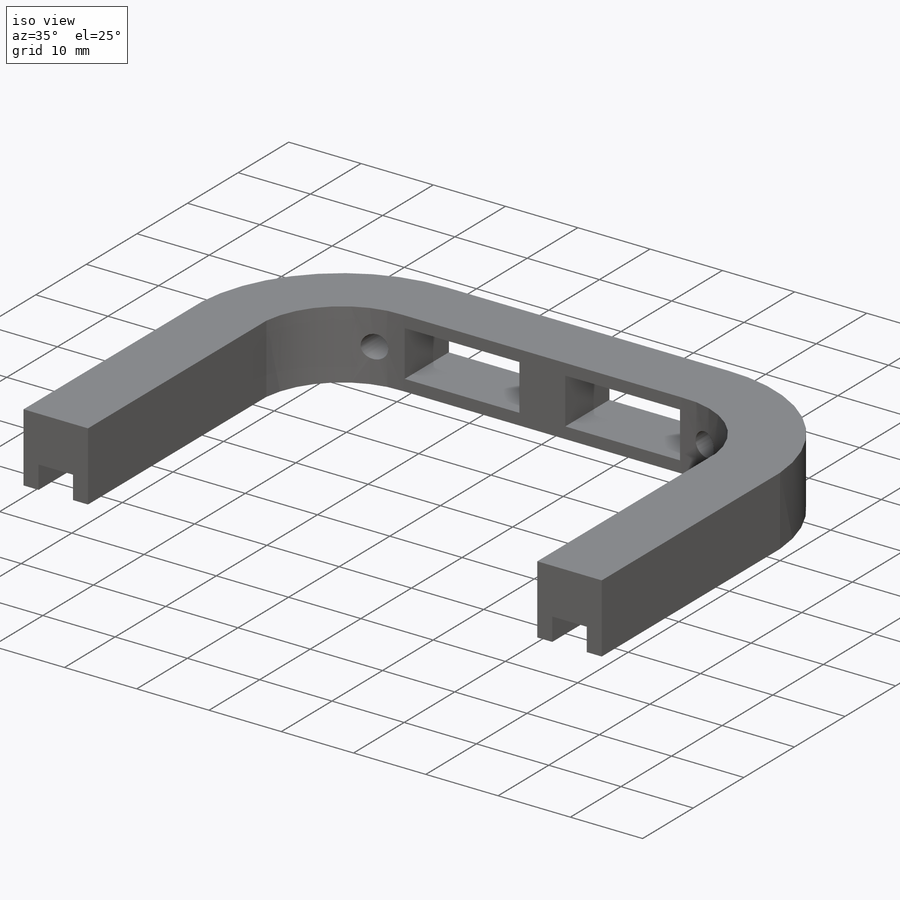
[diagram: iso view]
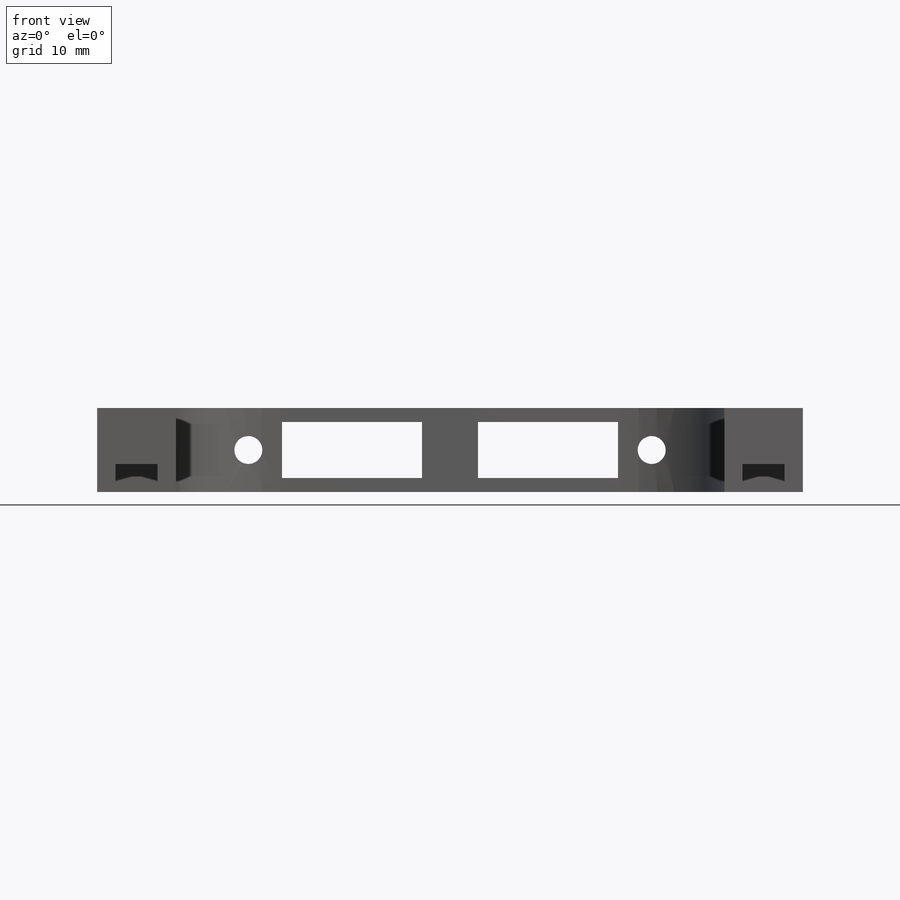
[diagram: front view]
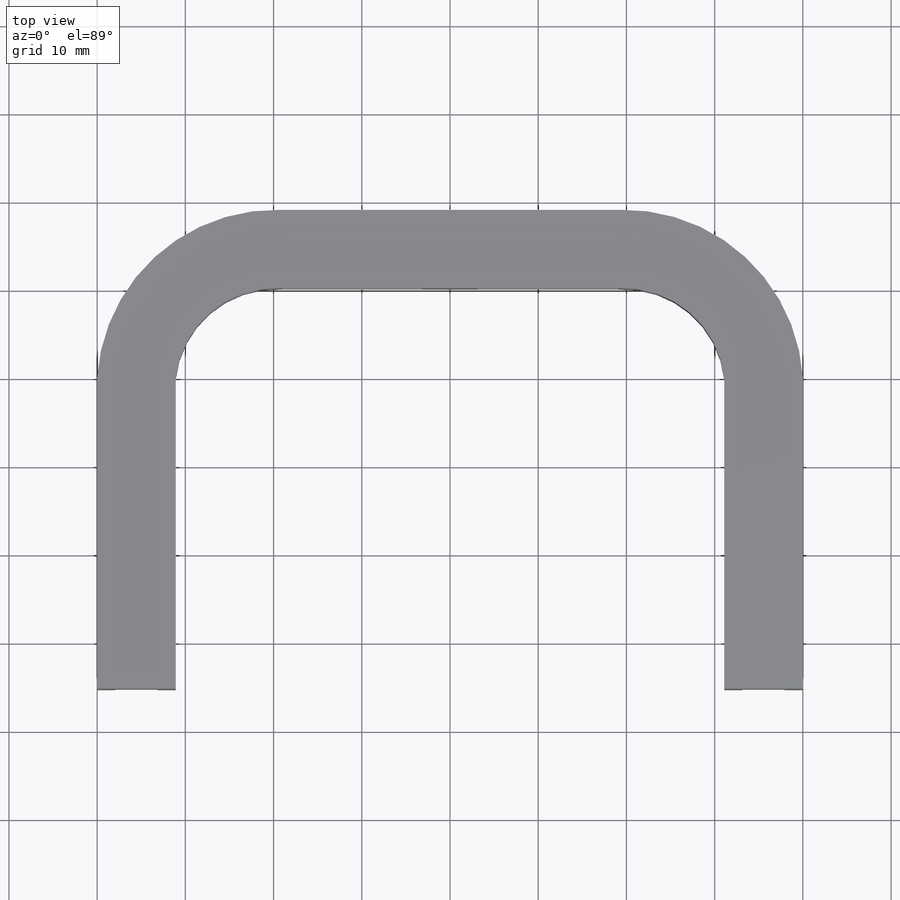
[diagram: top view]
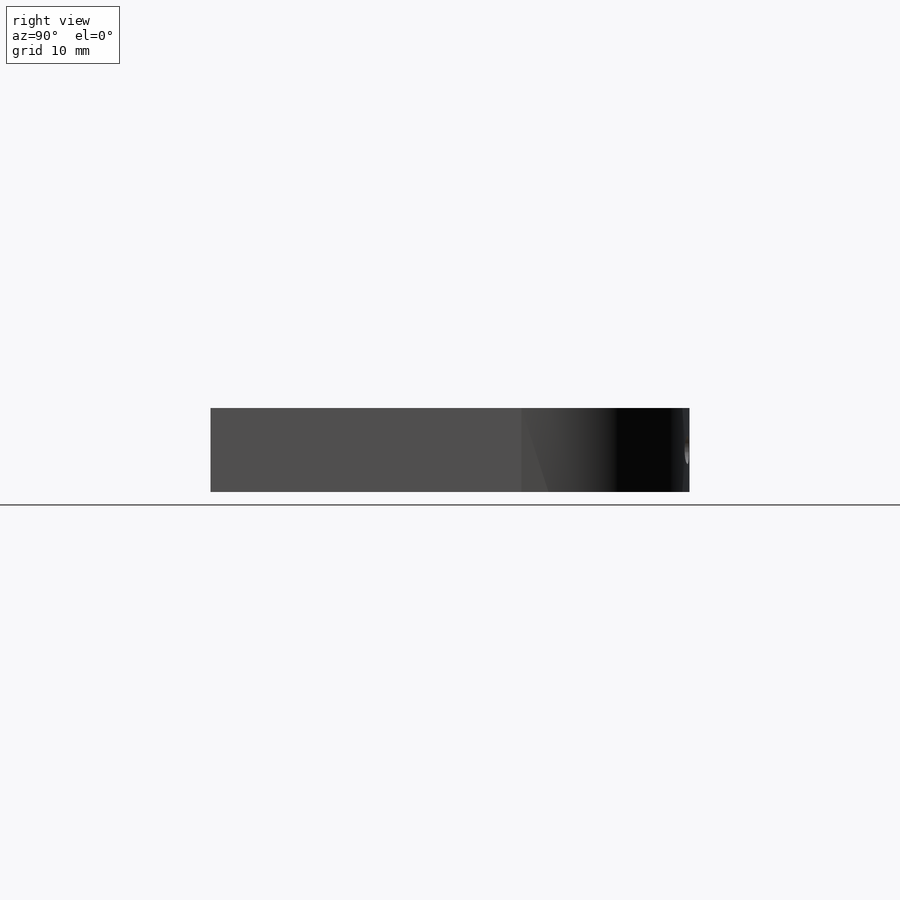
[diagram: right view]
SOLIDWORKS PART (.sldprt)
format: sldprt  version: not decoded by parser v0  size: 288,256 bytes
history: native  units: mm
features: sketch x6, extrude x2, cut_extrude x2, material x1, hole x1, fillet x1 (+14 scaffold rows collapsed)
feature tree (27):
  scaffold x14  (default folders/planes/origin — collapsed)
  material  "Material <not specified>"
  sketch  "Sketch1"  dims[c1.D1=104.14mm c1.D4=20.32mm c1.D2=~12.872943mm c1.D3=~12.872943mm c2.D2=80.01mm c2.D1=80.01mm c3.D2=38.1mm c3.D3=19.05mm c3.D6=22.5425mm c4.D3=5.08mm c4.D5=8.89mm]
  extrude  "Extrude1"  Depth=9.525mm
  sketch  "Sketch2"  dims[c1.D4=~2.263669mm c1.D5=3.175mm c1.D1=6.35mm c1.D2=15.875mm c1.D3=6.35mm c2.D4=45.72mm]
  cut_extrude  "Extrude2"  [1 undecoded]
  sketch  "Sketch3"
  extrude  "Extrude3"  Depth=12.7mm
  sketch  "Sketch4"  dims[D1=4.7625mm D2=31.75mm]
  cut_extrude  "Extrude4"  Depth=3.175mm
  hole  "#4-40 Tapped Hole1"  Diameter=2.2606mm Depth=7.62mm
  sketch  "3DSketch1"  dims[c1.D2=31.115mm c1.D3=35.8775mm c1.D1=13.6525mm c2.D2=~2.670184mm]
  sketch  "Sketch5"  dims[hole-wizard template sketch: 29 standard entries collapsed; hole parameters kept: c8.Tap Drill Depth=7.62mm c8.Thread Major Dia.=2.8448mm c8.Thread Depth=5.588mm c8.D5=~14.816244mm c8.Drill Angle=118.0deg]
  fillet  "Fillet1"  Radius=0.254mm
decode coverage: 10 of 12 modeling features carry decoded parameters
note: ~ marks probable driven/reference dimensions
note: 1 parameter value undecoded
note: suppression state not decoded; provenance and decode notes live in map.json
